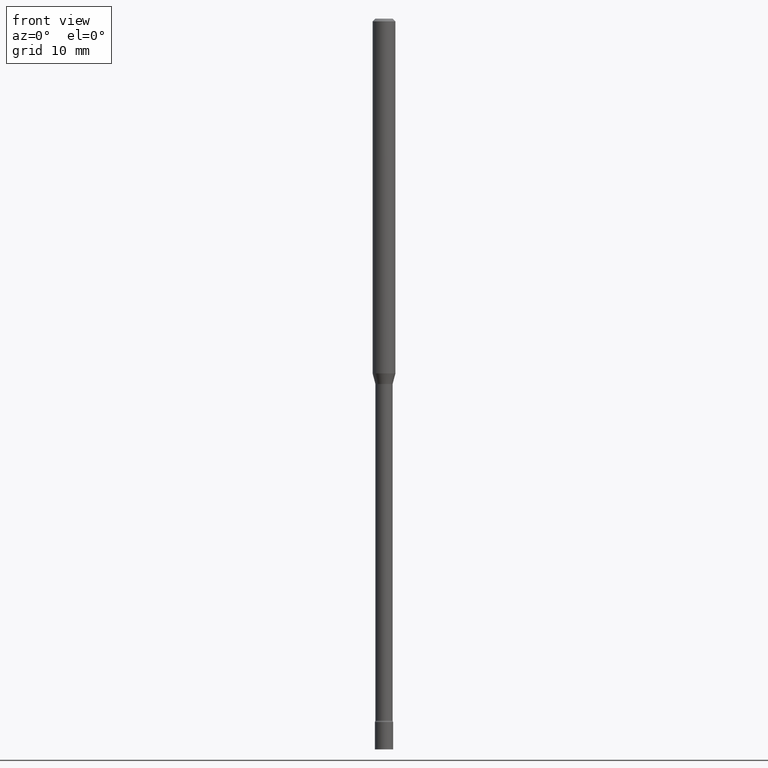
[diagram: clean part render]
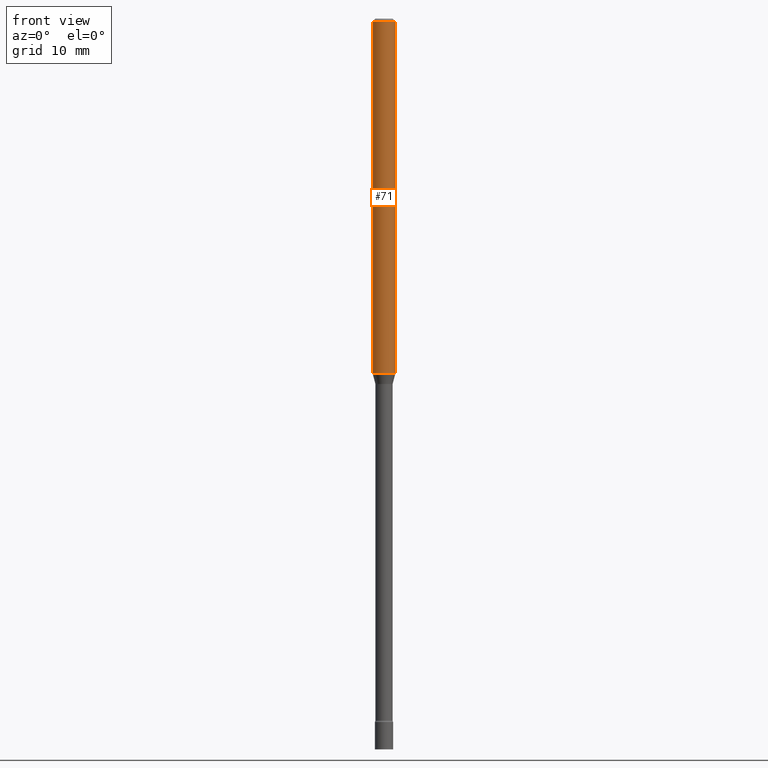
[diagram: same view with one face highlighted and labeled with its STEP entity id]
A machine part, front view. The second image highlights one B-rep face of the part: STEP entity #71.
In plain terms, the highlighted cylindrical surface (edge-blend (fillet) strip) has radius 1.5875 mm, axis along (-0, 0, 1).
Its self-contained STEP definition (entity closure, byte-faithful):
#29 = CARTESIAN_POINT ( 'NONE',  ( -0.06250000000000000000, 4.440892098500626162E-16, -3.074334431409316114E-30 ) ) ;
#40 = ORIENTED_EDGE ( 'NONE', *, *, #359, .F. ) ;
#43 = CARTESIAN_POINT ( 'NONE',  ( 0.06250000000000000000, -4.364351673553916694E-16, 3.047610484872459871E-30 ) ) ;
#44 = VERTEX_POINT ( 'NONE', #204 ) ;
#47 = CARTESIAN_POINT ( 'NONE',  ( 0.06250000000000000000, -4.888073874380389458E-16, -0.01500000000000003067 ) ) ;
#71 = ADVANCED_FACE ( 'NONE', ( #345 ), #428, .T. ) ;
#77 = DIRECTION ( 'NONE',  ( 1.000000000000000000, -6.982962677686262766E-15, 0.000000000000000000 ) ) ;
#79 = VERTEX_POINT ( 'NONE', #171 ) ;
#129 = LINE ( 'NONE', #43, #495 ) ;
#144 = EDGE_LOOP ( 'NONE', ( #183, #226, #209, #40 ) ) ;
#151 = CARTESIAN_POINT ( 'NONE',  ( 3.668203209277712094E-31, -5.237222008264728876E-17, -0.01500000000000003067 ) ) ;
#155 = AXIS2_PLACEMENT_3D ( 'NONE', #356, #520, #77 ) ;
#168 = VERTEX_POINT ( 'NONE', #47 ) ;
#171 = CARTESIAN_POINT ( 'NONE',  ( -0.06250000000000000000, -2.972592749470036882E-15, -0.01500000000000003067 ) ) ;
#183 = ORIENTED_EDGE ( 'NONE', *, *, #334, .F. ) ;
#186 = DIRECTION ( 'NONE',  ( -2.445468806185136877E-29, 3.491481338843145188E-15, 1.000000000000000000 ) ) ;
#204 = CARTESIAN_POINT ( 'NONE',  ( -0.06250000000000000000, -6.336902488707488907E-15, -1.942153212482682134 ) ) ;
#209 = ORIENTED_EDGE ( 'NONE', *, *, #452, .T. ) ;
#222 = AXIS2_PLACEMENT_3D ( 'NONE', #353, #377, #464 ) ;
#226 = ORIENTED_EDGE ( 'NONE', *, *, #239, .T. ) ;
#239 = EDGE_CURVE ( 'NONE', #44, #266, #256, .T. ) ;
#247 = AXIS2_PLACEMENT_3D ( 'NONE', #151, #315, #481 ) ;
#256 = CIRCLE ( 'NONE', #155, 0.06250000000000000000 ) ;
#266 = VERTEX_POINT ( 'NONE', #276 ) ;
#276 = CARTESIAN_POINT ( 'NONE',  ( 0.06250000000000000000, -7.217426865912943982E-15, -1.942153212482682134 ) ) ;
#279 = CIRCLE ( 'NONE', #247, 0.06250000000000000000 ) ;
#315 = DIRECTION ( 'NONE',  ( -2.445468806185136597E-29, 3.491481338843145583E-15, 1.000000000000000000 ) ) ;
#334 = EDGE_CURVE ( 'NONE', #44, #79, #433, .T. ) ;
#345 = FACE_OUTER_BOUND ( 'NONE', #144, .T. ) ;
#348 = VECTOR ( 'NONE', #186, 39.37007874015748143 ) ;
#353 = CARTESIAN_POINT ( 'NONE',  ( 0.000000000000000000, 0.000000000000000000, 0.000000000000000000 ) ) ;
#356 = CARTESIAN_POINT ( 'NONE',  ( 4.749475097958652803E-29, -6.780991698557551523E-15, -1.942153212482682134 ) ) ;
#359 = EDGE_CURVE ( 'NONE', #79, #168, #279, .T. ) ;
#377 = DIRECTION ( 'NONE',  ( -2.445468806185136597E-29, 3.491481338843145583E-15, 1.000000000000000000 ) ) ;
#408 = DIRECTION ( 'NONE',  ( -2.445468806185136877E-29, 3.491481338843145188E-15, 1.000000000000000000 ) ) ;
#428 = CYLINDRICAL_SURFACE ( 'NONE', #222, 0.06250000000000000000 ) ;
#433 = LINE ( 'NONE', #29, #348 ) ;
#452 = EDGE_CURVE ( 'NONE', #266, #168, #129, .T. ) ;
#464 = DIRECTION ( 'NONE',  ( 1.000000000000000000, -6.982962677686266711E-15, 4.876176775795935793E-29 ) ) ;
#481 = DIRECTION ( 'NONE',  ( 1.000000000000000000, -6.982962677686266711E-15, 0.000000000000000000 ) ) ;
#495 = VECTOR ( 'NONE', #408, 39.37007874015748143 ) ;
#520 = DIRECTION ( 'NONE',  ( -2.445468806185136597E-29, 3.491481338843145583E-15, 1.000000000000000000 ) ) ;